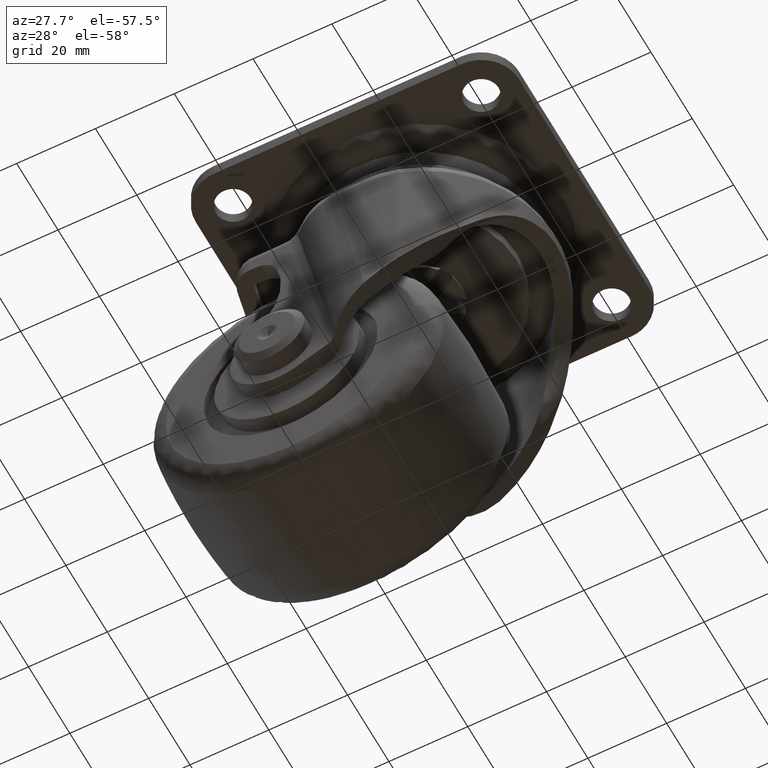
[diagram: clean part render]
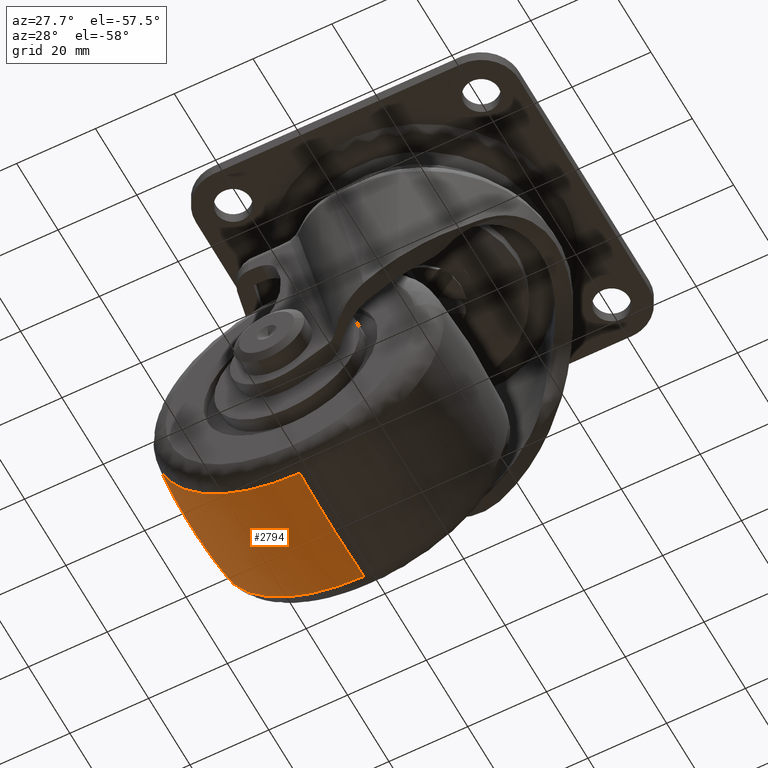
[diagram: same view with one face highlighted and labeled with its STEP entity id]
A machine part, auxiliary view. The second image highlights one B-rep face of the part: STEP entity #2794.
In plain terms, the highlighted face is a freeform B-spline surface patch.
Its self-contained STEP definition (entity closure, byte-faithful):
#2355=CARTESIAN_POINT('',(-36.449793876648862,-15.517253867070529,-66.736978037823619));
#2356=VERTEX_POINT('',#2355);
#2372=CARTESIAN_POINT('',(0.0,-15.517251615525330,-99.195224126982296));
#2373=VERTEX_POINT('',#2372);
#2374=CARTESIAN_POINT('',(0.0,-15.517251615525330,-99.195224126982296));
#2375=CARTESIAN_POINT('',(-32.676799533740869,-15.517252741297925,-99.195224279073472));
#2376=CARTESIAN_POINT('',(-36.449793876648862,-15.517253867070529,-66.736978037823619));
#2384=(BOUNDED_CURVE()B_SPLINE_CURVE(2,(#2374,#2375,#2376),.UNSPECIFIED.,.F.,.U.)B_SPLINE_CURVE_WITH_KNOTS((3,3),(0.500000000000000,0.730000035775448),.UNSPECIFIED.)CURVE()GEOMETRIC_REPRESENTATION_ITEM()RATIONAL_B_SPLINE_CURVE((1.0,0.730538196778079,0.956886188605427))REPRESENTATION_ITEM(''));
#2385=EDGE_CURVE('',#2373,#2356,#2384,.T.);
#2501=CARTESIAN_POINT('',(0.0,15.517244941485520,-99.195222311844901));
#2502=VERTEX_POINT('',#2501);
#2516=CARTESIAN_POINT('',(-36.449792078363529,15.517247110264440,-66.736977862260062));
#2517=VERTEX_POINT('',#2516);
#2518=CARTESIAN_POINT('',(0.0,15.517244941485520,-99.195222311844901));
#2519=CARTESIAN_POINT('',(-32.676796901307448,15.517246025874984,-99.195221352084573));
#2520=CARTESIAN_POINT('',(-36.449792078363529,15.517247110264440,-66.736977862260062));
#2528=(BOUNDED_CURVE()B_SPLINE_CURVE(2,(#2518,#2519,#2520),.UNSPECIFIED.,.F.,.U.)B_SPLINE_CURVE_WITH_KNOTS((3,3),(0.500000000000000,0.730000035622184),.UNSPECIFIED.)CURVE()GEOMETRIC_REPRESENTATION_ITEM()RATIONAL_B_SPLINE_CURVE((1.0,0.730538196957639,0.956886188303766))REPRESENTATION_ITEM(''));
#2529=EDGE_CURVE('',#2502,#2517,#2528,.T.);
#2738=CARTESIAN_POINT('',(0.0,15.517244941485517,-99.195222311844915));
#2739=CARTESIAN_POINT('',(0.0,-0.000003371721056,-100.809115346414560));
#2740=CARTESIAN_POINT('',(0.0,-15.517251615525325,-99.195224126982296));
#2748=(BOUNDED_CURVE()B_SPLINE_CURVE(2,(#2738,#2739,#2740),.UNSPECIFIED.,.F.,.U.)B_SPLINE_CURVE_WITH_KNOTS((3,3),(0.431391331764442,0.568608696755920),.UNSPECIFIED.)CURVE()GEOMETRIC_REPRESENTATION_ITEM()RATIONAL_B_SPLINE_CURVE((0.877353574678528,0.872646424343099,0.877353576635273))REPRESENTATION_ITEM(''));
#2749=EDGE_CURVE('',#2502,#2373,#2748,.T.);
#2755=CARTESIAN_POINT('',(-36.449792078363522,15.517247110264439,-66.736977862260062));
#2756=CARTESIAN_POINT('',(-38.052891270136683,-0.000003413551862,-66.923324814073879));
#2757=CARTESIAN_POINT('',(-36.449793876648855,-15.517253867070533,-66.736978037823619));
#2765=(BOUNDED_CURVE()B_SPLINE_CURVE(2,(#2755,#2756,#2757),.UNSPECIFIED.,.F.,.U.)B_SPLINE_CURVE_WITH_KNOTS((3,3),(0.431391322123576,0.568608706764706),.UNSPECIFIED.)CURVE()GEOMETRIC_REPRESENTATION_ITEM()RATIONAL_B_SPLINE_CURVE((0.839527456987766,0.835023248897621,0.839527458884302))REPRESENTATION_ITEM(''));
#2766=EDGE_CURVE('',#2517,#2356,#2765,.T.);
#2771=CARTESIAN_POINT('',(0.0,17.057819787561687,-99.026946503292038));
#2772=CARTESIAN_POINT('',(0.0,-0.000003390297979,-100.979407320367100));
#2773=CARTESIAN_POINT('',(0.0,-17.057826480471181,-99.026945737212671));
#2774=CARTESIAN_POINT('',(-32.526942717731309,17.057819787561691,-99.026946503292038));
#2775=CARTESIAN_POINT('',(-34.265592871526465,-0.000003390297981,-100.979407320367120));
#2776=CARTESIAN_POINT('',(-32.526942035543996,-17.057826480471185,-99.026945737212671));
#2777=CARTESIAN_POINT('',(-36.282641091000023,17.057819787561684,-66.717555727673854));
#2778=CARTESIAN_POINT('',(-38.222043144872536,-0.000003390297983,-66.942995111208731));
#2779=CARTESIAN_POINT('',(-36.282640330044487,-17.057826480471185,-66.717555639219100));
#2787=(BOUNDED_SURFACE()B_SPLINE_SURFACE(2,2,((#2771,#2774,#2777),(#2772,#2775,#2778),(#2773,#2776,#2779)),.UNSPECIFIED.,.F.,.F.,.U.)B_SPLINE_SURFACE_WITH_KNOTS((3,3),(3,3),(0.0,34.226660885250212),(0.0,57.098773362883328),.UNSPECIFIED.)GEOMETRIC_REPRESENTATION_ITEM()RATIONAL_B_SPLINE_SURFACE(((0.877847307975337,0.641301026208486,0.839999902892641),(0.872152690900182,0.637140890680379,0.834550802865013),(0.877847310224300,0.641301027851440,0.839999905044643)))REPRESENTATION_ITEM('')SURFACE());
#2788=ORIENTED_EDGE('',*,*,#2385,.T.);
#2789=ORIENTED_EDGE('',*,*,#2766,.F.);
#2790=ORIENTED_EDGE('',*,*,#2529,.F.);
#2791=ORIENTED_EDGE('',*,*,#2749,.T.);
#2792=EDGE_LOOP('',(#2788,#2789,#2790,#2791));
#2793=FACE_OUTER_BOUND('',#2792,.T.);
#2794=ADVANCED_FACE('',(#2793),#2787,.T.);